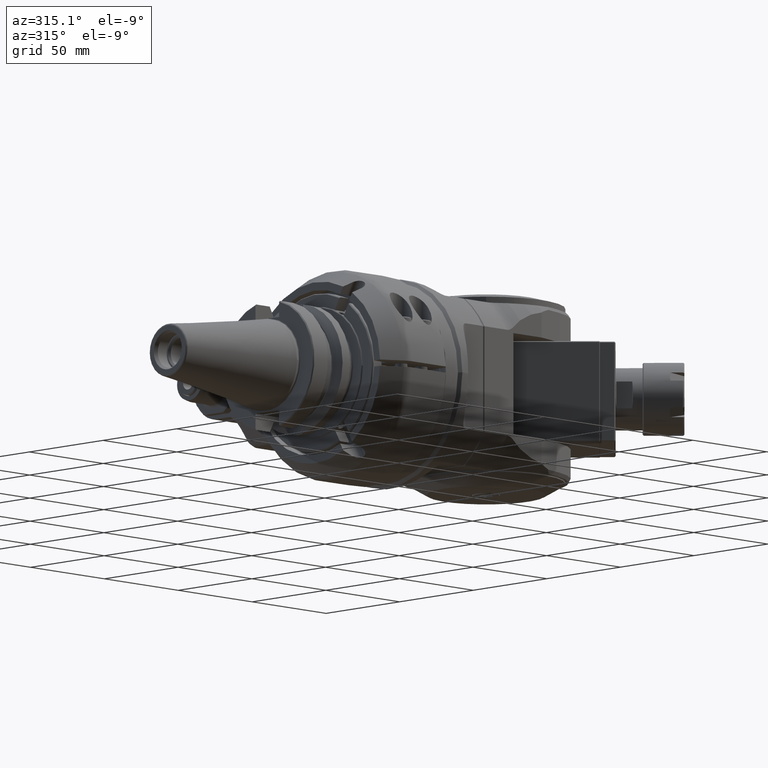
[diagram: clean part render]
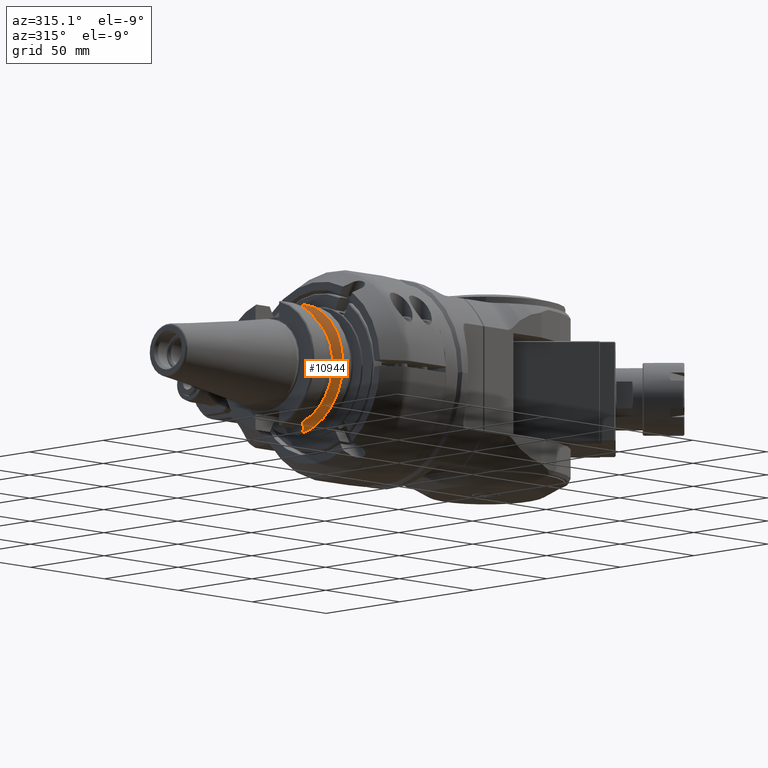
[diagram: same view with one face highlighted and labeled with its STEP entity id]
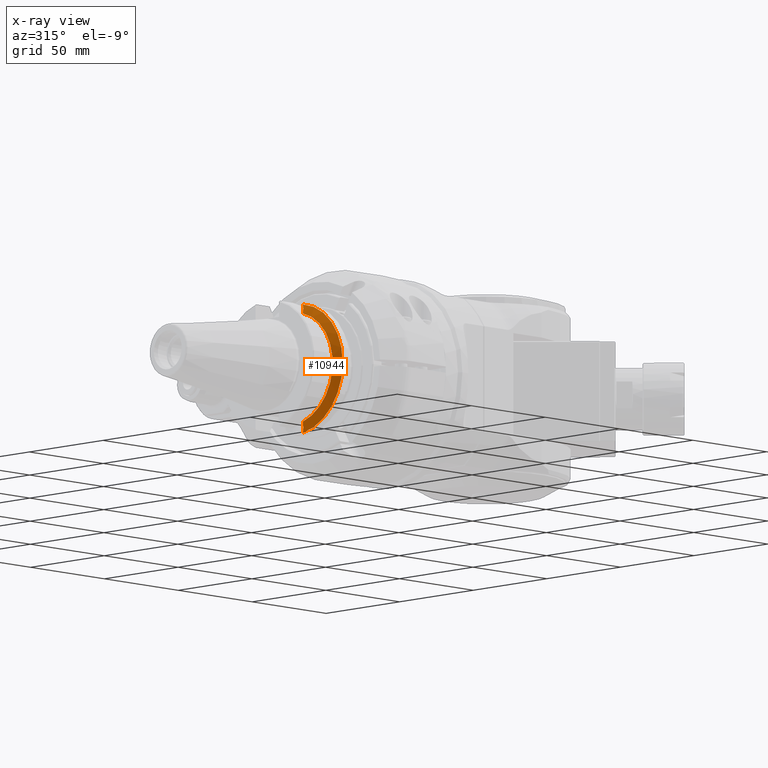
[diagram: x-ray of the same camera — body ghosted, the highlighted face saturated]
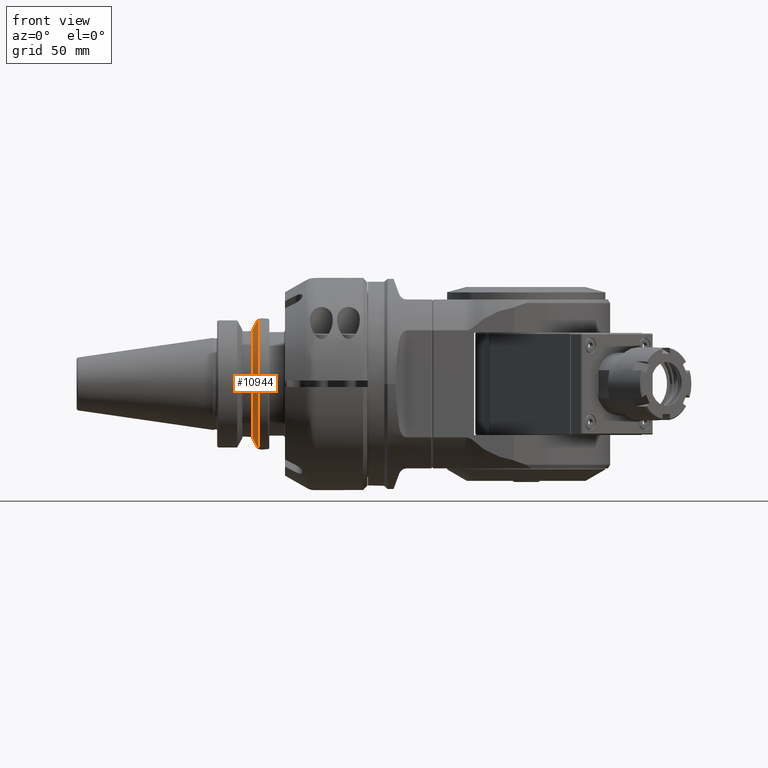
[diagram: same view with one face highlighted and labeled with its STEP entity id]
A machine part, auxiliary view. The second image highlights one B-rep face of the part: STEP entity #10944.
The next image is the same camera in x-ray: the body ghosted, the highlighted face saturated — about 0% of this face is hidden behind the body in this view.
A second angle (front view) of the same face is appended — the face is thin or edge-on in the first view.
In plain terms, the highlighted conical surface has half-angle 60 deg.
Its self-contained STEP definition (entity closure, byte-faithful):
#816=CONICAL_SURFACE('',#11841,29.33481350946,1.0471975511966);
#1134=FACE_OUTER_BOUND('',#1835,.T.);
#1835=EDGE_LOOP('',(#8483,#8484,#8485,#8486,#8487,#8488));
#2503=CIRCLE('',#11842,27.16962701892);
#2504=CIRCLE('',#11843,31.5);
#2879=B_SPLINE_CURVE_WITH_KNOTS('',3,(#47273,#47274,#47275,#47276,#47277,
#47278),.UNSPECIFIED.,.F.,.F.,(4,2,4),(3.68842051935509,3.99940996028877,
4.23503741983749),.UNSPECIFIED.);
#2880=B_SPLINE_CURVE_WITH_KNOTS('',3,(#47430,#47431,#47432,#47433,#47434,
#47435,#47436,#47437,#47438,#47439,#47440,#47441,#47442,#47443,#47444,#47445),
 .UNSPECIFIED.,.F.,.F.,(4,2,2,2,2,2,2,4),(9.98828740521093E-7,0.00586463509307737,
0.0095562899912753,0.0118105774638015,0.0138441467853587,0.0158462323098269,
0.0177183820111912,0.0196311993223013),.UNSPECIFIED.);
#2889=B_SPLINE_CURVE_WITH_KNOTS('',3,(#47659,#47660,#47661,#47662,#47663,
#47664),.UNSPECIFIED.,.F.,.F.,(4,2,4),(-3.89563791299272,-3.58464847136601,
-3.3490210118173),.UNSPECIFIED.);
#2891=B_SPLINE_CURVE_WITH_KNOTS('',3,(#47842,#47843,#47844,#47845,#47846,
#47847,#47848,#47849,#47850,#47851,#47852,#47853,#47854,#47855,#47856,#47857),
 .UNSPECIFIED.,.F.,.F.,(4,2,2,2,2,2,2,4),(9.99987498796838E-7,0.00389664274996061,
0.00633707127921464,0.00828489843902712,0.0107040959102663,0.014452027372533,
0.0204121680729188,0.0270937158756613),.UNSPECIFIED.);
#4927=VERTEX_POINT('',#47184);
#4932=VERTEX_POINT('',#47271);
#4933=VERTEX_POINT('',#47429);
#4951=VERTEX_POINT('',#47590);
#4952=VERTEX_POINT('',#47658);
#4953=VERTEX_POINT('',#47816);
#6208=EDGE_CURVE('',#4927,#4932,#2879,.T.);
#6209=EDGE_CURVE('',#4933,#4927,#2880,.T.);
#6241=EDGE_CURVE('',#4951,#4952,#2889,.T.);
#6244=EDGE_CURVE('',#4951,#4953,#2891,.T.);
#6245=EDGE_CURVE('',#4952,#4932,#2503,.T.);
#6246=EDGE_CURVE('',#4953,#4933,#2504,.T.);
#8483=ORIENTED_EDGE('',*,*,#6245,.F.);
#8484=ORIENTED_EDGE('',*,*,#6241,.F.);
#8485=ORIENTED_EDGE('',*,*,#6244,.T.);
#8486=ORIENTED_EDGE('',*,*,#6246,.T.);
#8487=ORIENTED_EDGE('',*,*,#6209,.T.);
#8488=ORIENTED_EDGE('',*,*,#6208,.T.);
#10944=ADVANCED_FACE('',(#1134),#816,.T.);
#11841=AXIS2_PLACEMENT_3D('',#47858,#13711,#13712);
#11842=AXIS2_PLACEMENT_3D('',#47859,#13713,#13714);
#11843=AXIS2_PLACEMENT_3D('',#47860,#13715,#13716);
#13711=DIRECTION('center_axis',(1.,0.,0.));
#13712=DIRECTION('ref_axis',(0.,-1.,0.));
#13713=DIRECTION('center_axis',(-1.,0.,0.));
#13714=DIRECTION('ref_axis',(0.,-0.253880030800102,-0.967235715821608));
#13715=DIRECTION('center_axis',(-1.,0.,0.));
#13716=DIRECTION('ref_axis',(0.,-1.,0.));
#47184=CARTESIAN_POINT('',(-64.4625135512585,-4.62682639009979,31.0486282545735));
#47271=CARTESIAN_POINT('',(-66.9,-6.897825744392,26.27943363825));
#47273=CARTESIAN_POINT('Ctrl Pts',(-64.4625136191003,-4.62682646978047,
31.0486283469098));
#47274=CARTESIAN_POINT('Ctrl Pts',(-64.8708099714128,-5.20814212486205,
30.2470023931048));
#47275=CARTESIAN_POINT('Ctrl Pts',(-65.3268155425977,-5.69557871142666,
29.3528901796434));
#47276=CARTESIAN_POINT('Ctrl Pts',(-66.1611845905581,-6.41303294704901,
27.7207116595251));
#47277=CARTESIAN_POINT('Ctrl Pts',(-66.5315716779745,-6.67616494966292,
26.997368068016));
#47278=CARTESIAN_POINT('Ctrl Pts',(-66.8999999999996,-6.89782574439198,
26.2794336382498));
#47429=CARTESIAN_POINT('',(-64.3998579127937,-4.7264916865524,31.1433825239399));
#47430=CARTESIAN_POINT('Ctrl Pts',(-64.3998580205811,-4.72649168266864,
31.143382498347));
#47431=CARTESIAN_POINT('Ctrl Pts',(-64.3998580665939,-4.70716595627705,
31.1463153966799));
#47432=CARTESIAN_POINT('Ctrl Pts',(-64.4011867061575,-4.68763240556855,
31.1469325652424));
#47433=CARTESIAN_POINT('Ctrl Pts',(-64.4054135681711,-4.65917187952327,
31.1437972076682));
#47434=CARTESIAN_POINT('Ctrl Pts',(-64.407708734926,-4.64792523737735,31.1414577963069));
#47435=CARTESIAN_POINT('Ctrl Pts',(-64.4127808252373,-4.63199551202809,
31.1349485465187));
#47436=CARTESIAN_POINT('Ctrl Pts',(-64.4150783729101,-4.62629272764577,
31.1317730226923));
#47437=CARTESIAN_POINT('Ctrl Pts',(-64.4202531950107,-4.61731503558385,
31.1240446467526));
#47438=CARTESIAN_POINT('Ctrl Pts',(-64.4230305546432,-4.6138683685995,31.11969249536));
#47439=CARTESIAN_POINT('Ctrl Pts',(-64.4295059060947,-4.60896262768039,
31.1090814177784));
#47440=CARTESIAN_POINT('Ctrl Pts',(-64.4328333564176,-4.60778996000481,
31.1034288963762));
#47441=CARTESIAN_POINT('Ctrl Pts',(-64.4392163586941,-4.60756869940699,
31.0922852979971));
#47442=CARTESIAN_POINT('Ctrl Pts',(-64.4432829401757,-4.60835086207015,
31.0850492452538));
#47443=CARTESIAN_POINT('Ctrl Pts',(-64.4533717066071,-4.61527789822122,
31.0663556118682));
#47444=CARTESIAN_POINT('Ctrl Pts',(-64.4582002666953,-4.62068531045778,
31.0570969366389));
#47445=CARTESIAN_POINT('Ctrl Pts',(-64.4625136064483,-4.62682650249615,
31.0486283641906));
#47590=CARTESIAN_POINT('',(-64.4625135472997,-4.62682638478309,-31.0486282582681));
#47658=CARTESIAN_POINT('',(-66.9,-6.897825744392,-26.27943363825));
#47659=CARTESIAN_POINT('Ctrl Pts',(-64.4625136163711,-4.62682646589467,
-31.0486283522683));
#47660=CARTESIAN_POINT('Ctrl Pts',(-64.8708099693793,-5.20814212269601,
-30.2470023970919));
#47661=CARTESIAN_POINT('Ctrl Pts',(-65.3268155415399,-5.69557871051705,
-29.3528901817127));
#47662=CARTESIAN_POINT('Ctrl Pts',(-66.1611845905581,-6.41303294704901,
-27.7207116595251));
#47663=CARTESIAN_POINT('Ctrl Pts',(-66.5315716779745,-6.67616494966292,
-26.997368068016));
#47664=CARTESIAN_POINT('Ctrl Pts',(-66.8999999999996,-6.89782574439198,
-26.2794336382498));
#47816=CARTESIAN_POINT('',(-64.3998579127001,-4.72649168881579,-31.1433825225356));
#47842=CARTESIAN_POINT('Ctrl Pts',(-64.4625136034798,-4.62682649922903,
-31.0486283698757));
#47843=CARTESIAN_POINT('Ctrl Pts',(-64.4575631490327,-4.61977821350155,
-31.058347816641));
#47844=CARTESIAN_POINT('Ctrl Pts',(-64.4518945883264,-4.61364066571493,
-31.0691853083728));
#47845=CARTESIAN_POINT('Ctrl Pts',(-64.4421547805335,-4.60821445592988,
-31.0870446402949));
#47846=CARTESIAN_POINT('Ctrl Pts',(-64.438247579312,-4.60721245349881,-31.0940343784172));
#47847=CARTESIAN_POINT('Ctrl Pts',(-64.4309886696318,-4.60838232954161,
-31.1065710947116));
#47848=CARTESIAN_POINT('Ctrl Pts',(-64.4277796209208,-4.60994336452058,
-31.1119587841653));
#47849=CARTESIAN_POINT('Ctrl Pts',(-64.4209117147468,-4.61612955710487,
-31.1230673080158));
#47850=CARTESIAN_POINT('Ctrl Pts',(-64.4181998209982,-4.62062433346321,
-31.1271489893814));
#47851=CARTESIAN_POINT('Ctrl Pts',(-64.4135986159346,-4.62965266673241,
-31.1338648449657));
#47852=CARTESIAN_POINT('Ctrl Pts',(-64.4112866696773,-4.63617336203064,
-31.1369433436454));
#47853=CARTESIAN_POINT('Ctrl Pts',(-64.4063844122806,-4.65370458121332,
-31.1429142178062));
#47854=CARTESIAN_POINT('Ctrl Pts',(-64.404072400503,-4.66638701267384,-31.1450668846594));
#47855=CARTESIAN_POINT('Ctrl Pts',(-64.4006898429775,-4.69527482684555,
-31.1466507007534));
#47856=CARTESIAN_POINT('Ctrl Pts',(-64.3998580576647,-4.71121494556084,
-31.1457009153542));
#47857=CARTESIAN_POINT('Ctrl Pts',(-64.3998580219402,-4.72649168473619,
-31.1433824956522));
#47858=CARTESIAN_POINT('Origin',(-65.64992899684,0.,0.));
#47859=CARTESIAN_POINT('Origin',(-66.9,0.,0.));
#47860=CARTESIAN_POINT('Origin',(-64.39985799368,0.,0.));